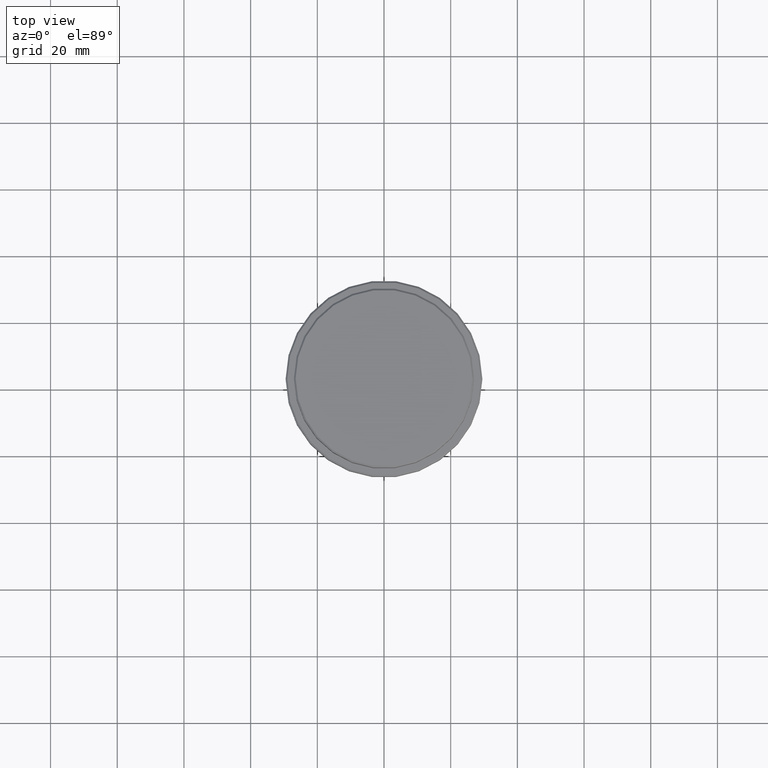
[diagram: clean part render]
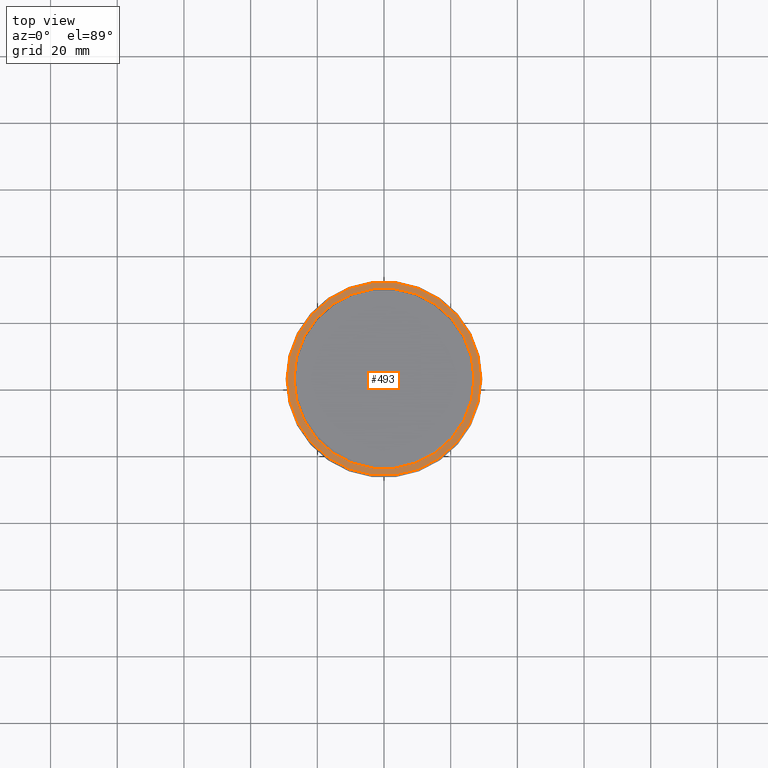
[diagram: same view with one face highlighted and labeled with its STEP entity id]
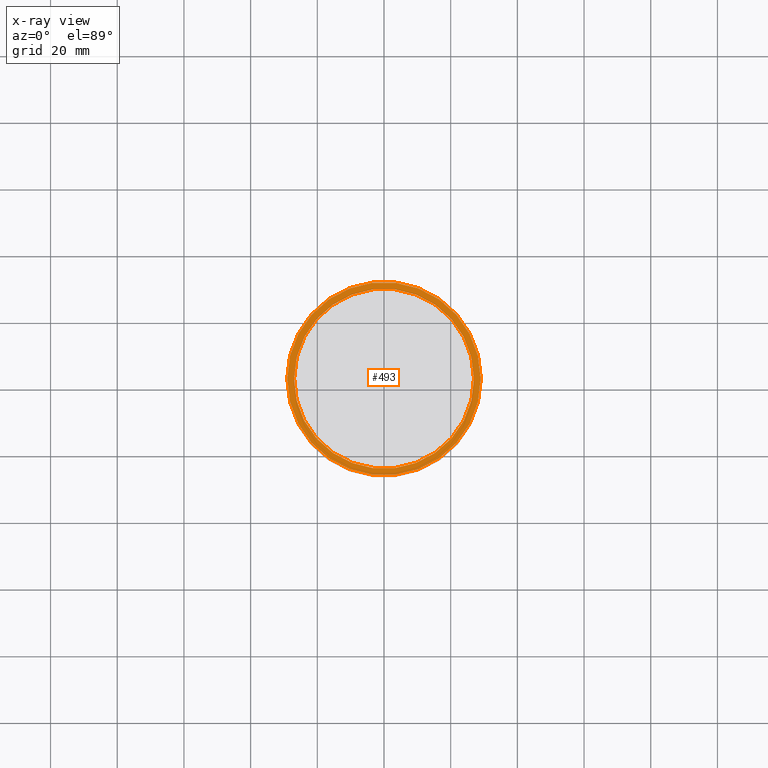
[diagram: x-ray of the same camera — body ghosted, the highlighted face saturated]
A machine part, top view. The second image highlights one B-rep face of the part: STEP entity #493.
The next image is the same camera in x-ray: the body ghosted, the highlighted face saturated — about 0% of this face is hidden behind the body in this view.
In plain terms, the highlighted planar face has unit normal (0, -0, 1).
Its self-contained STEP definition (entity closure, byte-faithful):
#1 = CIRCLE ( 'NONE', #514, 28.99999999999999645 ) ;
#55 = PLANE ( 'NONE',  #997 ) ;
#105 = VERTEX_POINT ( 'NONE', #1321 ) ;
#121 = VERTEX_POINT ( 'NONE', #523 ) ;
#124 = DIRECTION ( 'NONE',  ( 1.000000000000000000, 0.000000000000000000, 0.000000000000000000 ) ) ;
#130 = ORIENTED_EDGE ( 'NONE', *, *, #922, .T. ) ;
#159 = DIRECTION ( 'NONE',  ( 1.000000000000000000, 0.000000000000000000, 0.000000000000000000 ) ) ;
#209 = CIRCLE ( 'NONE', #999, 26.99999999999999645 ) ;
#268 = FACE_OUTER_BOUND ( 'NONE', #1223, .T. ) ;
#269 = EDGE_LOOP ( 'NONE', ( #1379, #1158 ) ) ;
#350 = CARTESIAN_POINT ( 'NONE',  ( 0.000000000000000000, 0.000000000000000000, -12.00000000000000355 ) ) ;
#352 = CARTESIAN_POINT ( 'NONE',  ( 26.99999999999999645, 0.000000000000000000, -12.00000000000000355 ) ) ;
#448 = DIRECTION ( 'NONE',  ( -0.000000000000000000, -0.000000000000000000, 1.000000000000000000 ) ) ;
#493 = ADVANCED_FACE ( 'NONE', ( #268, #1031 ), #55, .T. ) ;
#507 = VERTEX_POINT ( 'NONE', #960 ) ;
#514 = AXIS2_PLACEMENT_3D ( 'NONE', #837, #448, #656 ) ;
#523 = CARTESIAN_POINT ( 'NONE',  ( -28.99999999999999645, 0.000000000000000000, -12.00000000000000355 ) ) ;
#543 = DIRECTION ( 'NONE',  ( 0.000000000000000000, 0.000000000000000000, -1.000000000000000000 ) ) ;
#626 = CIRCLE ( 'NONE', #858, 26.99999999999999645 ) ;
#656 = DIRECTION ( 'NONE',  ( 1.000000000000000000, 0.000000000000000000, 0.000000000000000000 ) ) ;
#666 = DIRECTION ( 'NONE',  ( 1.000000000000000000, 0.000000000000000000, 0.000000000000000000 ) ) ;
#711 = VERTEX_POINT ( 'NONE', #352 ) ;
#837 = CARTESIAN_POINT ( 'NONE',  ( 0.000000000000000000, 0.000000000000000000, -12.00000000000000355 ) ) ;
#858 = AXIS2_PLACEMENT_3D ( 'NONE', #865, #543, #124 ) ;
#865 = CARTESIAN_POINT ( 'NONE',  ( 0.000000000000000000, 0.000000000000000000, -12.00000000000000355 ) ) ;
#876 = EDGE_CURVE ( 'NONE', #507, #711, #626, .T. ) ;
#922 = EDGE_CURVE ( 'NONE', #121, #105, #952, .T. ) ;
#936 = EDGE_CURVE ( 'NONE', #711, #507, #209, .T. ) ;
#952 = CIRCLE ( 'NONE', #1329, 28.99999999999999645 ) ;
#960 = CARTESIAN_POINT ( 'NONE',  ( -26.99999999999999645, 3.306546357697853339E-15, -12.00000000000000355 ) ) ;
#997 = AXIS2_PLACEMENT_3D ( 'NONE', #1278, #1284, #1270 ) ;
#999 = AXIS2_PLACEMENT_3D ( 'NONE', #350, #1013, #666 ) ;
#1013 = DIRECTION ( 'NONE',  ( 0.000000000000000000, 0.000000000000000000, -1.000000000000000000 ) ) ;
#1031 = FACE_BOUND ( 'NONE', #269, .T. ) ;
#1080 = EDGE_CURVE ( 'NONE', #105, #121, #1, .T. ) ;
#1125 = CARTESIAN_POINT ( 'NONE',  ( 0.000000000000000000, 0.000000000000000000, -12.00000000000000355 ) ) ;
#1158 = ORIENTED_EDGE ( 'NONE', *, *, #876, .T. ) ;
#1223 = EDGE_LOOP ( 'NONE', ( #130, #1314 ) ) ;
#1270 = DIRECTION ( 'NONE',  ( 1.000000000000000000, 0.000000000000000000, 0.000000000000000000 ) ) ;
#1278 = CARTESIAN_POINT ( 'NONE',  ( 0.000000000000000000, 26.49999999999999645, -12.00000000000000355 ) ) ;
#1284 = DIRECTION ( 'NONE',  ( 0.000000000000000000, -0.000000000000000000, 1.000000000000000000 ) ) ;
#1314 = ORIENTED_EDGE ( 'NONE', *, *, #1080, .T. ) ;
#1321 = CARTESIAN_POINT ( 'NONE',  ( 28.99999999999999645, 3.582091887506007817E-15, -12.00000000000000355 ) ) ;
#1329 = AXIS2_PLACEMENT_3D ( 'NONE', #1125, #1344, #159 ) ;
#1344 = DIRECTION ( 'NONE',  ( -0.000000000000000000, -0.000000000000000000, 1.000000000000000000 ) ) ;
#1379 = ORIENTED_EDGE ( 'NONE', *, *, #936, .T. ) ;